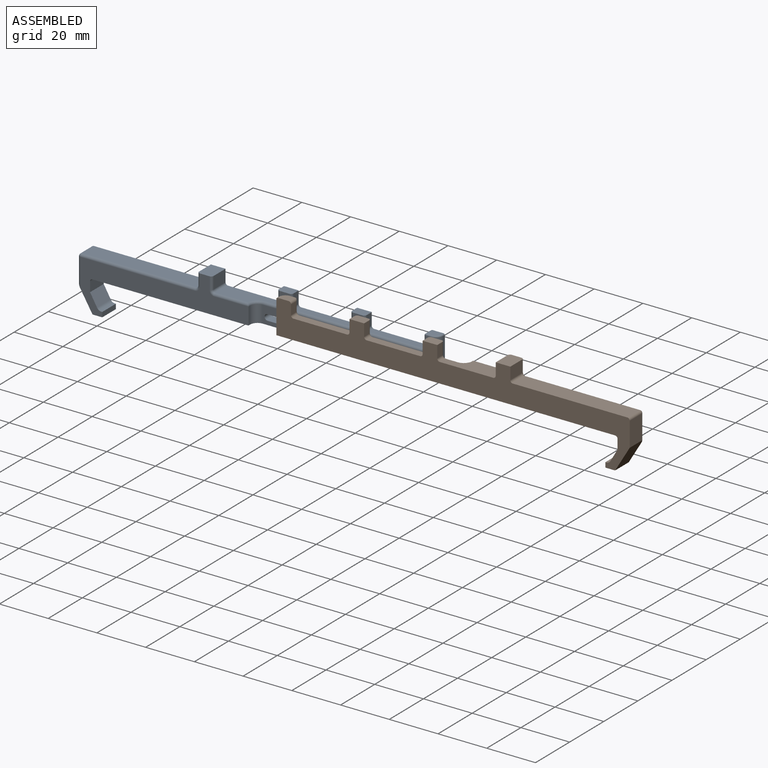
[diagram: assembled view]
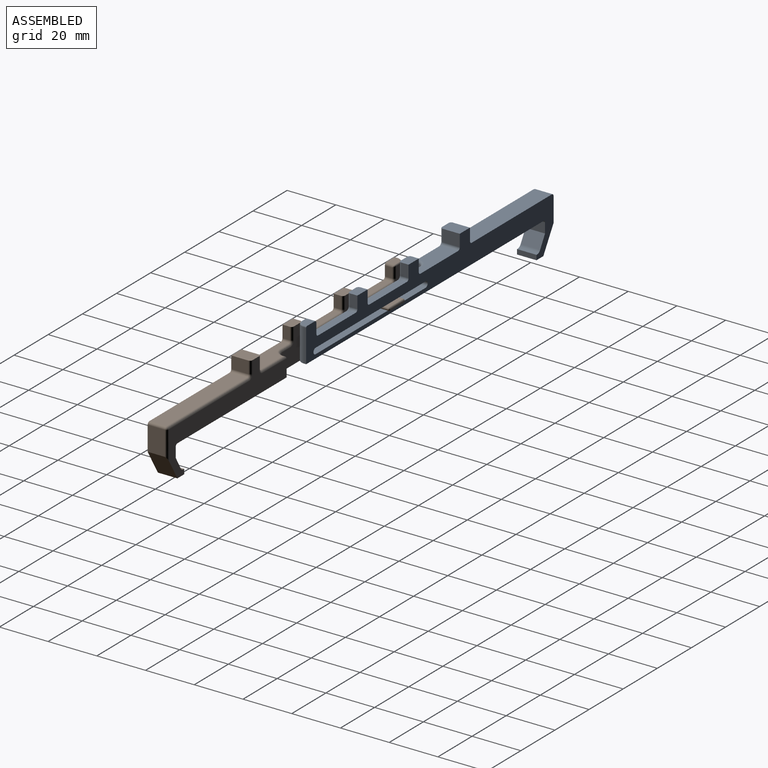
[diagram: assembled view, second angle]
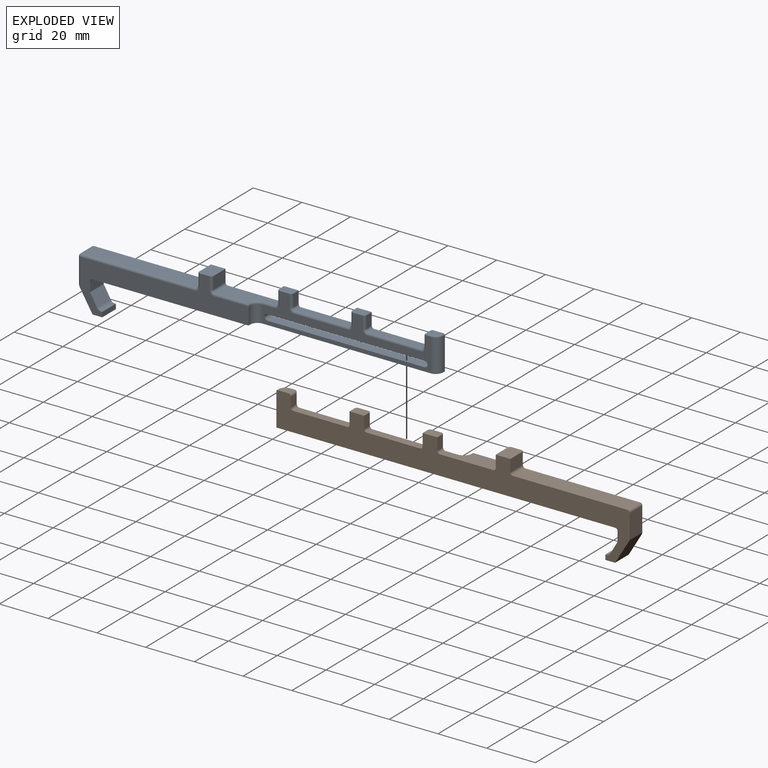
[diagram: exploded view]
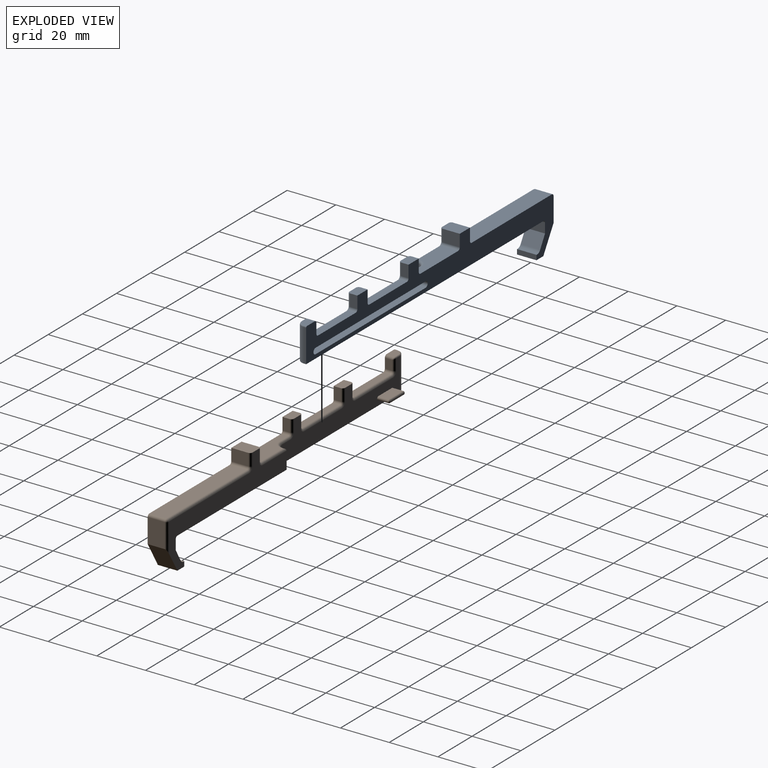
[diagram: exploded view, second angle]
ASSEMBLY  parts=2 mates=2
PART A: 72 faces, bbox 145.2x8x27 mm
  f0: plane 22x7mm, normal (0,0,1), area 121.4mm2, adj f24,f37,f38,f57,f59,f60
  f1: plane 5x3mm, normal (1,0,0), area 15mm2, adj f2,f24,f38,f54
  f2: plane 6x4mm, normal (0,0,1), area 23.6mm2, adj f1,f3,f24,f25,f54,f62
  f3: plane 5x3mm, normal (-1,0,0), area 15mm2, adj f2,f24,f39,f62
  f4: plane 22x3mm, normal (0,0,1), area 66mm2, adj f24,f39,f40,f64
  f5: plane 5x3mm, normal (1,0,0), area 15mm2, adj f6,f24,f40,f66
  f6: plane 6x4mm, normal (0,0,1), area 23.6mm2, adj f5,f7,f24,f25,f47,f66
  f7: plane 5x3mm, normal (-1,0,0), area 15mm2, adj f6,f24,f41,f47
  f8: plane 22x3mm, normal (0,0,1), area 66mm2, adj f24,f41,f42,f49
  f9: plane 4x3mm, normal (1,0,0), area 12mm2, adj f24,f42,f51,f53
  f10: plane 4.5x3.5mm, normal (0,0,1), area 14.4mm2, adj f24,f33,f34,f35,f53
  f11: plane 69x27mm, normal (0,1,0), area 564.7mm2, adj f14,f17,f18,f19,f20,f21,f22,f26
  f12: plane 47x7mm, normal (0,0,1), area 329mm2, adj f24,f36,f43,f69
  f13: plane 7x5mm, normal (1,0,0), area 35mm2, adj f14,f24,f36,f67
  f14: plane 8x6mm, normal (0,0,1), area 47.6mm2, adj f11,f13,f15,f24,f56,f67
  f15: plane 7x5mm, normal (-1,0,0), area 35mm2, adj f14,f24,f37,f56
  f16: plane 13.5x1mm, normal (-1,0,0), area 13.5mm2, adj f17,f24,f32,f33
  f17: plane 139x8mm, normal (0,0,-1), area 812mm2, adj f11,f16,f24,f25,f26,f31,f32,f44
  f18: plane 8x4mm, normal (-1,0,0), area 32mm2, adj f11,f19,f24,f44
  f19: plane 8x5mm, normal (-0.87,0,0.5), area 46.2mm2, adj f11,f18,f24,f45
  f20: plane 8x0.38mm, normal (0,0,1), area 3mm2, adj f11,f21,f24,f45
  f21: plane 8x2mm, normal (-1,0,0), area 16mm2, adj f11,f20,f22,f24
  f22: plane 8x4mm, normal (0,0,-1), area 32mm2, adj f11,f21,f24,f46
  f23: plane 10x7mm, normal (1,0,0), area 70mm2, adj f24,f43,f46,f71
  f24: plane 145x27mm, normal (0,-1,0), area 1201.5mm2, adj f0,f1,f2,f3,f4,f5,f6,f7
  f25: plane 69x14mm, normal (0,1,0), area 397mm2, adj f2,f6,f17,f27,f28,f29,f30,f31
  f26: plane 7x1mm, normal (-1,0,0), area 7mm2, adj f11,f17,f31,f61
  f27: cylinder r=1.2mm len=4mm, axis (0,1,0), area 15.1mm2, adj f24,f25,f28,f30
  f28: plane 64.5x4mm, normal (0,0,1), area 258mm2, adj f24,f25,f27,f29
  f29: cylinder r=1.2mm len=4mm, axis (0,1,0), area 15.1mm2, adj f24,f25,f28,f30
  f30: plane 64.5x4mm, normal (0,0,-1), area 258mm2, adj f24,f25,f27,f29
  f31: cylinder r=3mm len=7mm, axis (0,0,1), area 33mm2, adj f17,f25,f26,f59
  f32: cylinder r=3mm len=13.5mm, axis (0,0,1), area 63.6mm2, adj f16,f17,f25,f34
  f33: cylinder r=0.5mm len=1mm, axis (0,-1,0), area 0.8mm2, adj f10,f16,f24,f34
  f34: torus R=2.5mm, axis (0,0,1), area 3.5mm2, adj f10,f32,f33,f35
  f35: cylinder r=0.5mm len=2mm, axis (-1,0,0), area 1.6mm2, adj f10,f25,f34,f52
  f36: cylinder r=1mm len=7mm, axis (0,1,0), area 11mm2, adj f12,f13,f24,f68
  f37: cylinder r=1mm len=7mm, axis (0,1,0), area 11mm2, adj f0,f15,f24,f58
  f38: cylinder r=1mm len=3mm, axis (0,1,0), area 4.7mm2, adj f0,f1,f24,f55
  f39: cylinder r=1mm len=3mm, axis (0,1,0), area 4.7mm2, adj f3,f4,f24,f63
  f40: cylinder r=1mm len=3mm, axis (0,1,0), area 4.7mm2, adj f4,f5,f24,f65
  f41: cylinder r=1mm len=3mm, axis (0,1,0), area 4.7mm2, adj f7,f8,f24,f48
  f42: cylinder r=1mm len=3mm, axis (0,1,0), area 4.7mm2, adj f8,f9,f24,f50
  f43: cylinder r=1mm len=7mm, axis (0,1,0), area 11mm2, adj f12,f23,f24,f70
  f44: cylinder r=1mm len=8mm, axis (0,-1,0), area 12.6mm2, adj f11,f17,f18,f24
  f45: cylinder r=2mm len=8mm, axis (0,-1,0), area 16.8mm2, adj f11,f19,f20,f24
  f46: plane 10x8mm, normal (0.86,0,-0.51), area 92.9mm2, adj f11,f22,f23,f24,f71
  f47: cylinder r=1mm len=5mm, axis (0,0,-1), area 7.9mm2, adj f6,f7,f25,f48
  f48: torus R=2mm, axis (0,1,0), area 3.4mm2, adj f25,f41,f47,f49
  f49: cylinder r=1mm len=22mm, axis (-1,0,0), area 34.6mm2, adj f8,f25,f48,f50
  f50: torus R=2mm, axis (0,1,0), area 3.4mm2, adj f25,f42,f49,f51
  f51: cylinder r=1mm len=4.5mm, axis (0,0,1), area 6.8mm2, adj f9,f25,f50,f52
  f52: bspline ~1.19x1mm, area 0.8mm2, adj f35,f51,f53
  f53: cylinder r=1mm len=3.5mm, axis (0,1,0), area 5.2mm2, adj f9,f10,f24,f52
  f54: cylinder r=1mm len=5mm, axis (0,0,1), area 7.9mm2, adj f1,f2,f25,f55
  f55: torus R=2mm, axis (0,1,0), area 3.4mm2, adj f25,f38,f54,f57
  f56: cylinder r=1mm len=5mm, axis (0,0,-1), area 7.9mm2, adj f11,f14,f15,f58
  f57: cylinder r=1mm len=5mm, axis (-1,0,0), area 7.9mm2, adj f0,f25,f55,f59
  f58: torus R=2mm, axis (0,-1,0), area 3.4mm2, adj f11,f37,f56,f60
  f59: torus R=4mm, axis (0,0,-1), area 8.3mm2, adj f0,f31,f57,f61
  f60: cylinder r=1mm len=14mm, axis (-1,0,0), area 21.4mm2, adj f0,f11,f58,f61
  f61: cylinder r=1mm len=1mm, axis (0,-1,0), area 1mm2, adj f26,f59,f60
  f62: cylinder r=1mm len=5mm, axis (0,0,-1), area 7.9mm2, adj f2,f3,f25,f63
  f63: torus R=2mm, axis (0,1,0), area 3.4mm2, adj f25,f39,f62,f64
  f64: cylinder r=1mm len=22mm, axis (-1,0,0), area 34.6mm2, adj f4,f25,f63,f65
  f65: torus R=2mm, axis (0,1,0), area 3.4mm2, adj f25,f40,f64,f66
  f66: cylinder r=1mm len=5mm, axis (0,0,1), area 7.9mm2, adj f5,f6,f25,f65
  f67: cylinder r=1mm len=5mm, axis (0,0,1), area 7.9mm2, adj f11,f13,f14,f68
  f68: torus R=2mm, axis (0,-1,0), area 3.4mm2, adj f11,f36,f67,f69
  f69: cylinder r=1mm len=47mm, axis (-1,0,0), area 73.8mm2, adj f11,f12,f68,f70
  f70: sphere r=1mm, area 1.6mm2, adj f43,f69,f71
  f71: cylinder r=1mm len=11.67mm, axis (0,0,1), area 16.7mm2, adj f11,f23,f46,f70
PART B: 77 faces, bbox 145.2x9x27 mm
  f0: plane 69x14mm, normal (0,1,0), area 543.6mm2, adj f3,f7,f18,f27,f28,f29,f30,f32
  f1: plane 22x7mm, normal (0,0,1), area 121.4mm2, adj f25,f38,f39,f58,f60,f61
  f2: plane 5x3mm, normal (1,0,0), area 15mm2, adj f3,f25,f39,f55
  f3: plane 6x4mm, normal (0,0,1), area 23.6mm2, adj f0,f2,f4,f25,f55,f63
  f4: plane 5x3mm, normal (-1,0,0), area 15mm2, adj f3,f25,f40,f63
  f5: plane 22x3mm, normal (0,0,1), area 66mm2, adj f25,f40,f41,f65
  f6: plane 5x3mm, normal (1,0,0), area 15mm2, adj f7,f25,f41,f67
  f7: plane 6x4mm, normal (0,0,1), area 23.6mm2, adj f0,f6,f8,f25,f48,f67
  f8: plane 5x3mm, normal (-1,0,0), area 15mm2, adj f7,f25,f42,f48
  f9: plane 22x3mm, normal (0,0,1), area 66mm2, adj f25,f42,f43,f50
  f10: plane 4x3mm, normal (1,0,0), area 12mm2, adj f25,f43,f52,f54
  f11: plane 4.5x3.5mm, normal (0,0,1), area 14.4mm2, adj f25,f34,f35,f36,f54
  f12: plane 69x27mm, normal (0,1,0), area 564.7mm2, adj f15,f18,f19,f20,f21,f22,f23,f26
  f13: plane 47x7mm, normal (0,0,1), area 329mm2, adj f25,f37,f44,f70
  f14: plane 7x5mm, normal (1,0,0), area 35mm2, adj f15,f25,f37,f68
  f15: plane 8x6mm, normal (0,0,1), area 47.6mm2, adj f12,f14,f16,f25,f57,f68
  f16: plane 7x5mm, normal (-1,0,0), area 35mm2, adj f15,f25,f38,f57
  f17: plane 13.5x1mm, normal (-1,0,0), area 13.5mm2, adj f18,f25,f33,f34
  f18: plane 139x8mm, normal (0,0,-1), area 812mm2, adj f0,f12,f17,f25,f26,f32,f33,f45
  f19: plane 8x4mm, normal (-1,0,0), area 32mm2, adj f12,f20,f25,f45
  f20: plane 8x5mm, normal (-0.87,0,0.5), area 46.2mm2, adj f12,f19,f25,f46
  f21: plane 8x0.38mm, normal (0,0,1), area 3mm2, adj f12,f22,f25,f46
  f22: plane 8x2mm, normal (-1,0,0), area 16mm2, adj f12,f21,f23,f25
  f23: plane 8x4mm, normal (0,0,-1), area 32mm2, adj f12,f22,f25,f47
  f24: plane 10x7mm, normal (1,0,0), area 70mm2, adj f25,f44,f47,f72
  f25: plane 145x27mm, normal (0,-1,0), area 1360.8mm2, adj f1,f2,f3,f4,f5,f6,f7,f8
  f26: plane 7x1mm, normal (-1,0,0), area 7mm2, adj f12,f18,f32,f62
  f27: cylinder r=0.7mm len=4.4mm, axis (0,-1,0), area 9.7mm2, adj f0,f28,f30,f76
  f28: plane 8x4.4mm, normal (0,0,-1), area 35.2mm2, adj f0,f27,f29,f74
  f29: cylinder r=0.7mm len=4.4mm, axis (0,-1,0), area 9.7mm2, adj f0,f28,f30,f73
  f30: plane 8x4.4mm, normal (0,0,1), area 35.2mm2, adj f0,f27,f29,f75
  f31: plane 8.2x0.2mm, normal (0,1,0), area 1.6mm2, adj f73,f74,f75,f76
  f32: cylinder r=3mm len=7mm, axis (0,0,1), area 33mm2, adj f0,f18,f26,f60
  f33: cylinder r=3mm len=13.5mm, axis (0,0,1), area 63.6mm2, adj f0,f17,f18,f35
  f34: cylinder r=0.5mm len=1mm, axis (0,-1,0), area 0.8mm2, adj f11,f17,f25,f35
  f35: torus R=2.5mm, axis (0,0,1), area 3.5mm2, adj f11,f33,f34,f36
  f36: cylinder r=0.5mm len=2mm, axis (-1,0,0), area 1.6mm2, adj f0,f11,f35,f53
  f37: cylinder r=1mm len=7mm, axis (0,1,0), area 11mm2, adj f13,f14,f25,f69
  f38: cylinder r=1mm len=7mm, axis (0,1,0), area 11mm2, adj f1,f16,f25,f59
  f39: cylinder r=1mm len=3mm, axis (0,1,0), area 4.7mm2, adj f1,f2,f25,f56
  f40: cylinder r=1mm len=3mm, axis (0,1,0), area 4.7mm2, adj f4,f5,f25,f64
  f41: cylinder r=1mm len=3mm, axis (0,1,0), area 4.7mm2, adj f5,f6,f25,f66
  f42: cylinder r=1mm len=3mm, axis (0,1,0), area 4.7mm2, adj f8,f9,f25,f49
  f43: cylinder r=1mm len=3mm, axis (0,1,0), area 4.7mm2, adj f9,f10,f25,f51
  f44: cylinder r=1mm len=7mm, axis (0,1,0), area 11mm2, adj f13,f24,f25,f71
  f45: cylinder r=1mm len=8mm, axis (0,-1,0), area 12.6mm2, adj f12,f18,f19,f25
  f46: cylinder r=2mm len=8mm, axis (0,-1,0), area 16.8mm2, adj f12,f20,f21,f25
  f47: plane 10x8mm, normal (0.86,0,-0.51), area 92.9mm2, adj f12,f23,f24,f25,f72
  f48: cylinder r=1mm len=5mm, axis (0,0,-1), area 7.9mm2, adj f0,f7,f8,f49
  f49: torus R=2mm, axis (0,1,0), area 3.4mm2, adj f0,f42,f48,f50
  f50: cylinder r=1mm len=22mm, axis (-1,0,0), area 34.6mm2, adj f0,f9,f49,f51
  f51: torus R=2mm, axis (0,1,0), area 3.4mm2, adj f0,f43,f50,f52
  f52: cylinder r=1mm len=4.5mm, axis (0,0,1), area 6.8mm2, adj f0,f10,f51,f53
  f53: bspline ~1.19x1mm, area 0.8mm2, adj f36,f52,f54
  f54: cylinder r=1mm len=3.5mm, axis (0,1,0), area 5.2mm2, adj f10,f11,f25,f53
  f55: cylinder r=1mm len=5mm, axis (0,0,1), area 7.9mm2, adj f0,f2,f3,f56
  f56: torus R=2mm, axis (0,1,0), area 3.4mm2, adj f0,f39,f55,f58
  f57: cylinder r=1mm len=5mm, axis (0,0,-1), area 7.9mm2, adj f12,f15,f16,f59
  f58: cylinder r=1mm len=5mm, axis (-1,0,0), area 7.9mm2, adj f0,f1,f56,f60
  f59: torus R=2mm, axis (0,-1,0), area 3.4mm2, adj f12,f38,f57,f61
  f60: torus R=4mm, axis (0,0,-1), area 8.3mm2, adj f1,f32,f58,f62
  f61: cylinder r=1mm len=14mm, axis (-1,0,0), area 21.4mm2, adj f1,f12,f59,f62
  f62: cylinder r=1mm len=1mm, axis (0,-1,0), area 1mm2, adj f26,f60,f61
  f63: cylinder r=1mm len=5mm, axis (0,0,-1), area 7.9mm2, adj f0,f3,f4,f64
  f64: torus R=2mm, axis (0,1,0), area 3.4mm2, adj f0,f40,f63,f65
  f65: cylinder r=1mm len=22mm, axis (-1,0,0), area 34.6mm2, adj f0,f5,f64,f66
  f66: torus R=2mm, axis (0,1,0), area 3.4mm2, adj f0,f41,f65,f67
  f67: cylinder r=1mm len=5mm, axis (0,0,1), area 7.9mm2, adj f0,f6,f7,f66
  f68: cylinder r=1mm len=5mm, axis (0,0,1), area 7.9mm2, adj f12,f14,f15,f69
  f69: torus R=2mm, axis (0,-1,0), area 3.4mm2, adj f12,f37,f68,f70
  f70: cylinder r=1mm len=47mm, axis (-1,0,0), area 73.8mm2, adj f12,f13,f69,f71
  f71: sphere r=1mm, area 1.6mm2, adj f44,f70,f72
  f72: cylinder r=1mm len=11.67mm, axis (0,0,1), area 16.7mm2, adj f12,f24,f47,f71
  f73: torus R=0.1mm, axis (0,-1,0), area 1.4mm2, adj f29,f31,f74,f75
  f74: cylinder r=0.6mm len=8mm, axis (-1,0,0), area 7.5mm2, adj f28,f31,f73,f76
  f75: cylinder r=0.6mm len=8mm, axis (1,0,0), area 7.5mm2, adj f30,f31,f73,f76
  f76: torus R=0.1mm, axis (0,-1,0), area 1.4mm2, adj f27,f31,f74,f75
PLACE A rot(axis=(0,0,1),180deg) t=(-0.51,3.55,-20.47)mm
PLACE B rot(axis=(0.53,-0.06,-0.85),0deg) t=(-64.04,3.55,-20.97)mm
MATE planar A.f28 <-> B.f28  axis (0,0,1) through (-38.26,5.55,-18.87)mm
MATE planar A.f25 <-> B.f0  axis (0,-1,0) through (-38.32,3.55,-15.44)mm
